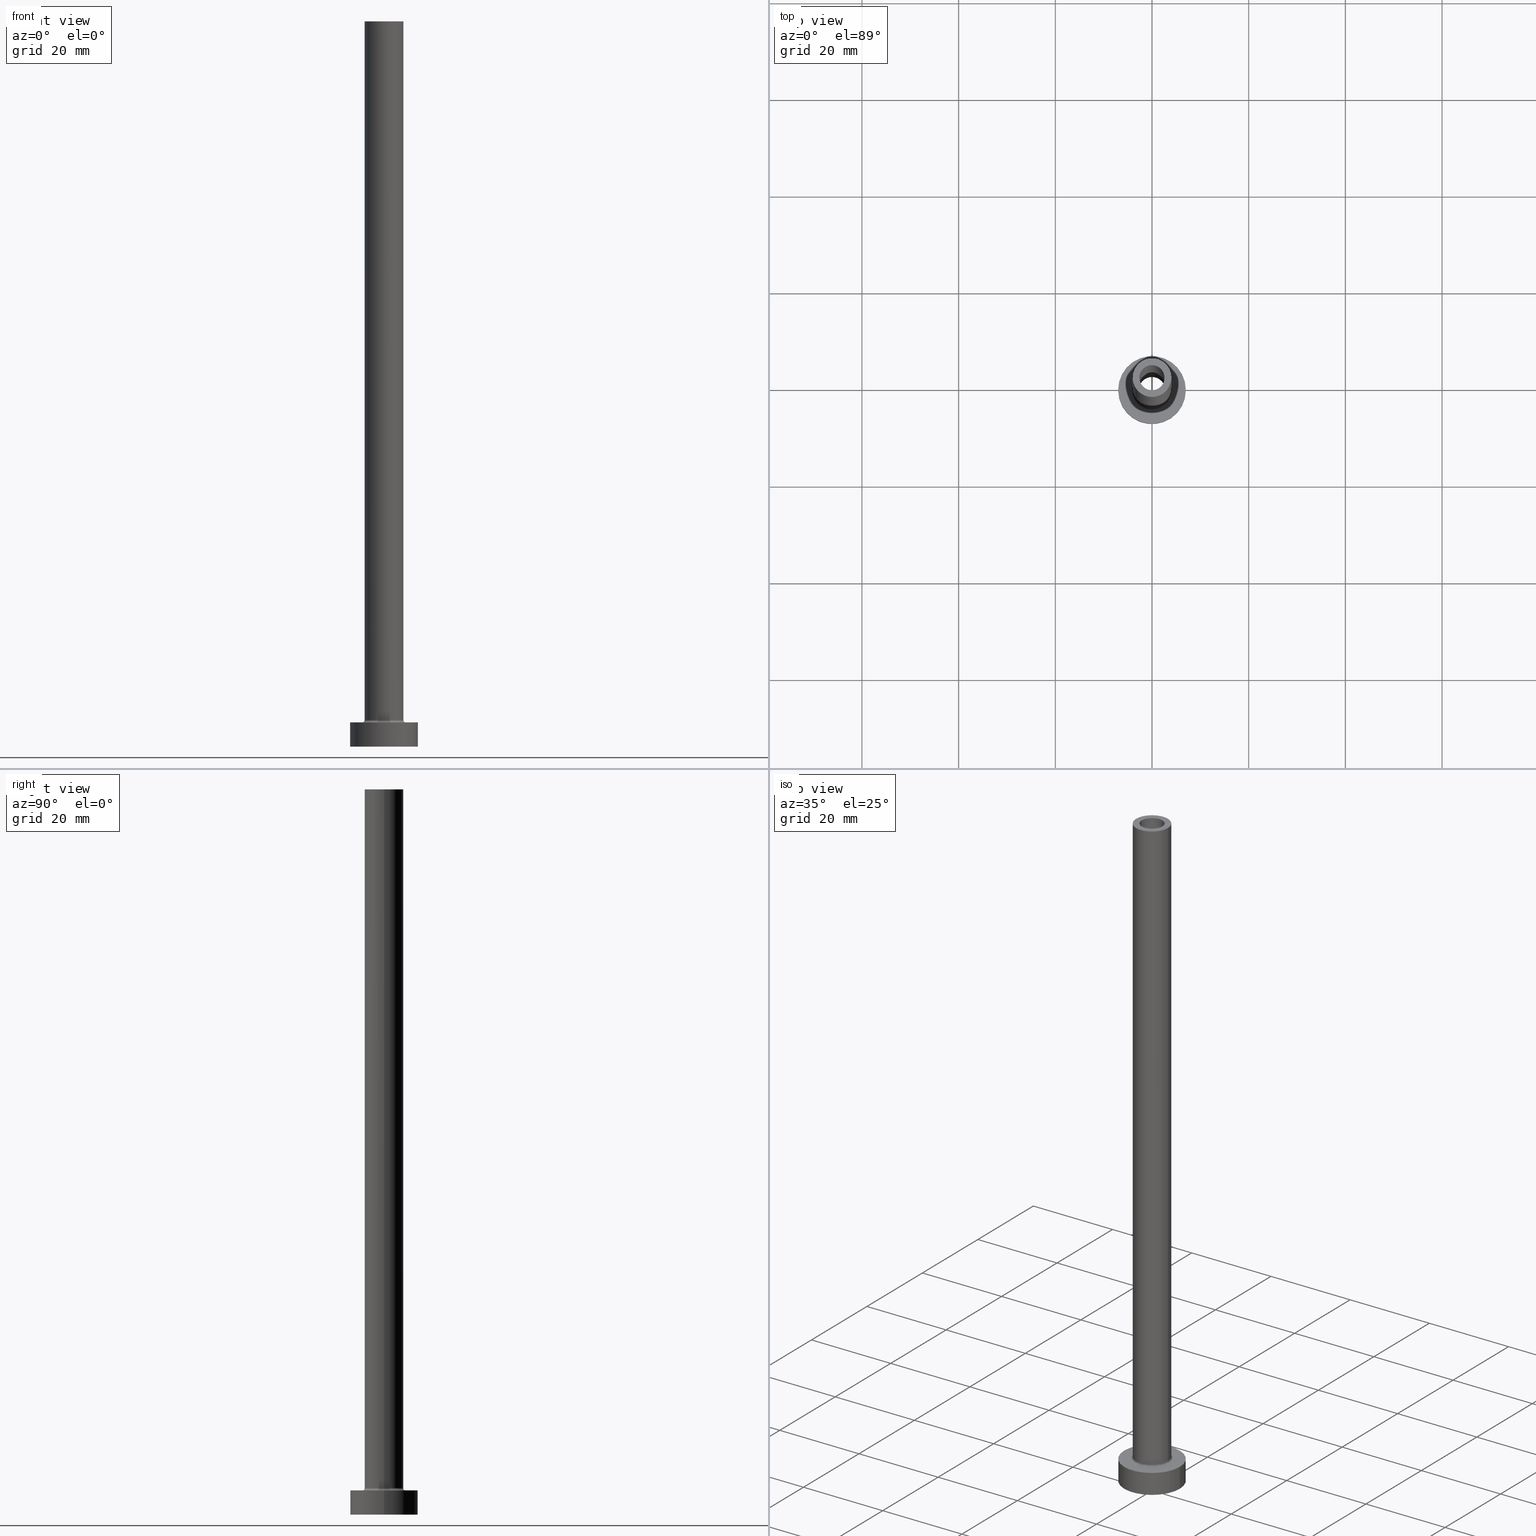
[diagram: canonical four-view strip — front | top / right | iso, engineering-drawing reading convention]
A machine part, canonical four-view strip (front | top / right | iso — engineering-drawing reading convention). The complete STEP part file that produces these views, byte-faithful:
ISO-10303-21;
HEADER;
FILE_DESCRIPTION (( 'STEP AP203' ),
    '1' );
FILE_NAME ('5574.STEP',
    '2023-02-13T16:31:23',
    ( '' ),
    ( '' ),
    'SwSTEP 2.0',
    'SolidWorks 2019',
    '' );
FILE_SCHEMA (( 'CONFIG_CONTROL_DESIGN' ));
ENDSEC;

DATA;
#1 = ADVANCED_FACE ( 'NONE', ( #315 ), #459, .T. ) ;
#2 = PRODUCT ( '5574', '5574', '', ( #221 ) ) ;
#3 = ORIENTED_EDGE ( 'NONE', *, *, #404, .F. ) ;
#4 = DIRECTION ( 'NONE',  ( -0.000000000000000000, -0.000000000000000000, -1.000000000000000000 ) ) ;
#5 = ORIENTED_EDGE ( 'NONE', *, *, #195, .F. ) ;
#6 = APPROVAL_ROLE ( '' ) ;
#7 = DIRECTION ( 'NONE',  ( -0.000000000000000000, -0.000000000000000000, -1.000000000000000000 ) ) ;
#8 = APPROVAL_PERSON_ORGANIZATION ( #353, #345, #6 ) ;
#9 = CC_DESIGN_DATE_AND_TIME_ASSIGNMENT ( #439, #388, ( #191 ) ) ;
#10 = DATE_AND_TIME ( #69, #254 ) ;
#11 = CARTESIAN_POINT ( 'NONE',  ( 0.000000000000000000, 0.000000000000000000, 150.0000000000000000 ) ) ;
#12 = APPROVAL_ROLE ( '' ) ;
#13 = AXIS2_PLACEMENT_3D ( 'NONE', #426, #327, #145 ) ;
#14 = DIRECTION ( 'NONE',  ( -0.000000000000000000, -0.000000000000000000, -1.000000000000000000 ) ) ;
#15 = EDGE_CURVE ( 'NONE', #357, #407, #36, .T. ) ;
#16 = FACE_BOUND ( 'NONE', #274, .T. ) ;
#17 = CARTESIAN_POINT ( 'NONE',  ( 0.000000000000000000, 0.000000000000000000, 5.000000000000000000 ) ) ;
#18 = FACE_BOUND ( 'NONE', #150, .T. ) ;
#19 = CIRCLE ( 'NONE', #209, 4.000000000000000000 ) ;
#20 = ORIENTED_EDGE ( 'NONE', *, *, #267, .T. ) ;
#21 = CARTESIAN_POINT ( 'NONE',  ( -2.600000000000000089, 0.000000000000000000, 150.0000000000000000 ) ) ;
#22 = FACE_OUTER_BOUND ( 'NONE', #74, .T. ) ;
#23 = DIRECTION ( 'NONE',  ( 0.000000000000000000, 0.000000000000000000, -1.000000000000000000 ) ) ;
#24 = ORIENTED_EDGE ( 'NONE', *, *, #300, .T. ) ;
#25 = DIRECTION ( 'NONE',  ( 1.000000000000000000, 0.000000000000000000, 0.000000000000000000 ) ) ;
#26 = CARTESIAN_POINT ( 'NONE',  ( 0.000000000000000000, 0.000000000000000000, 5.000000000000000000 ) ) ;
#27 = DIRECTION ( 'NONE',  ( 0.000000000000000000, 0.000000000000000000, 1.000000000000000000 ) ) ;
#28 = DIRECTION ( 'NONE',  ( -1.000000000000000000, 0.000000000000000000, 0.000000000000000000 ) ) ;
#29 = CYLINDRICAL_SURFACE ( 'NONE', #269, 2.750000000000000000 ) ;
#30 = ORIENTED_EDGE ( 'NONE', *, *, #224, .T. ) ;
#31 = DIRECTION ( 'NONE',  ( 0.000000000000000000, 0.000000000000000000, 1.000000000000000000 ) ) ;
#32 = AXIS2_PLACEMENT_3D ( 'NONE', #451, #87, #441 ) ;
#33 = CALENDAR_DATE ( 2023, 13, 2 ) ;
#34 = DATE_TIME_ROLE ( 'creation_date' ) ;
#35 = DIRECTION ( 'NONE',  ( 1.000000000000000000, 0.000000000000000000, 0.000000000000000000 ) ) ;
#36 = CIRCLE ( 'NONE', #85, 2.600000000000000089 ) ;
#37 = APPROVAL_STATUS ( 'not_yet_approved' ) ;
#38 = FACE_OUTER_BOUND ( 'NONE', #62, .T. ) ;
#39 = PERSON_AND_ORGANIZATION_ROLE ( 'creator' ) ;
#40 = ORIENTED_EDGE ( 'NONE', *, *, #61, .T. ) ;
#41 = DIRECTION ( 'NONE',  ( 0.000000000000000000, 0.000000000000000000, 1.000000000000000000 ) ) ;
#42 = AXIS2_PLACEMENT_3D ( 'NONE', #406, #77, #302 ) ;
#43 = ADVANCED_FACE ( 'NONE', ( #125 ), #29, .F. ) ;
#44 = CARTESIAN_POINT ( 'NONE',  ( 7.000000000000000000, 8.572527594031473190E-16, 0.000000000000000000 ) ) ;
#45 = VERTEX_POINT ( 'NONE', #252 ) ;
#46 = CARTESIAN_POINT ( 'NONE',  ( 0.000000000000000000, 0.000000000000000000, 5.000000000000000000 ) ) ;
#47 = LINE ( 'NONE', #263, #51 ) ;
#48 = CARTESIAN_POINT ( 'NONE',  ( 2.600000000000000089, 3.184081677783117698E-16, 150.0000000000000000 ) ) ;
#49 = PERSON ( 'NEUR�EN�', 'NEUR�EN�', 'NEUR�EN�', ('NEUR�EN�'), ('NEUR�EN�'), ('NEUR�EN�') ) ;
#50 = CIRCLE ( 'NONE', #13, 7.000000000000000000 ) ;
#51 = VECTOR ( 'NONE', #457, 1000.000000000000000 ) ;
#52 = CARTESIAN_POINT ( 'NONE',  ( -7.000000000000000000, 0.000000000000000000, 5.000000000000000000 ) ) ;
#53 = EDGE_CURVE ( 'NONE', #357, #456, #80, .T. ) ;
#54 = UNCERTAINTY_MEASURE_WITH_UNIT (LENGTH_MEASURE( 1.000000000000000082E-05 ), #133, 'distance_accuracy_value', 'NONE');
#55 = CARTESIAN_POINT ( 'NONE',  ( 0.000000000000000000, 0.000000000000000000, 5.500000000000005329 ) ) ;
#56 = AXIS2_PLACEMENT_3D ( 'NONE', #141, #178, #249 ) ;
#57 = CC_DESIGN_APPROVAL ( #345, ( #191 ) ) ;
#58 = DIRECTION ( 'NONE',  ( 0.000000000000000000, 0.000000000000000000, 1.000000000000000000 ) ) ;
#59 = DIRECTION ( 'NONE',  ( -1.000000000000000000, 0.000000000000000000, 0.000000000000000000 ) ) ;
#60 = CARTESIAN_POINT ( 'NONE',  ( 0.000000000000000000, 0.000000000000000000, 5.500000000000005329 ) ) ;
#61 = EDGE_CURVE ( 'NONE', #413, #75, #293, .T. ) ;
#62 = EDGE_LOOP ( 'NONE', ( #283, #445, #231, #20 ) ) ;
#63 = COORDINATED_UNIVERSAL_TIME_OFFSET ( 1, 0, .AHEAD. ) ;
#64 = CIRCLE ( 'NONE', #32, 2.750000000000000000 ) ;
#65 = ORGANIZATION ( 'NEUR�EN�', 'NEUR�EN�', '' ) ;
#66 = PERSON_AND_ORGANIZATION ( #49, #65 ) ;
#67 = ORIENTED_EDGE ( 'NONE', *, *, #264, .T. ) ;
#68 = CARTESIAN_POINT ( 'NONE',  ( -7.000000000000000000, 0.000000000000000000, 0.000000000000000000 ) ) ;
#69 = CALENDAR_DATE ( 2023, 13, 2 ) ;
#70 = DIRECTION ( 'NONE',  ( 1.000000000000000000, 0.000000000000000000, 0.000000000000000000 ) ) ;
#71 = AXIS2_PLACEMENT_3D ( 'NONE', #128, #415, #91 ) ;
#72 = CARTESIAN_POINT ( 'NONE',  ( 0.000000000000000000, 0.000000000000000000, 105.0000000000000000 ) ) ;
#73 = APPROVAL_DATE_TIME ( #10, #345 ) ;
#74 = EDGE_LOOP ( 'NONE', ( #193, #414 ) ) ;
#75 = VERTEX_POINT ( 'NONE', #117 ) ;
#76 = VECTOR ( 'NONE', #212, 1000.000000000000000 ) ;
#77 = DIRECTION ( 'NONE',  ( 0.000000000000000000, 0.000000000000000000, -1.000000000000000000 ) ) ;
#78 = AXIS2_PLACEMENT_3D ( 'NONE', #443, #408, #115 ) ;
#79 = EDGE_CURVE ( 'NONE', #284, #130, #255, .T. ) ;
#80 = LINE ( 'NONE', #21, #76 ) ;
#81 = DIRECTION ( 'NONE',  ( 1.000000000000000000, 0.000000000000000000, -0.000000000000000000 ) ) ;
#82 = DIRECTION ( 'NONE',  ( -0.000000000000000000, -0.000000000000000000, -1.000000000000000000 ) ) ;
#83 = LINE ( 'NONE', #118, #262 ) ;
#84 = EDGE_LOOP ( 'NONE', ( #3, #229, #390, #348 ) ) ;
#85 = AXIS2_PLACEMENT_3D ( 'NONE', #192, #268, #384 ) ;
#86 = LINE ( 'NONE', #411, #160 ) ;
#87 = DIRECTION ( 'NONE',  ( -0.000000000000000000, -0.000000000000000000, -1.000000000000000000 ) ) ;
#88 =( NAMED_UNIT ( * ) PLANE_ANGLE_UNIT ( ) SI_UNIT ( $, .RADIAN. ) );
#89 = ADVANCED_FACE ( 'NONE', ( #298, #307 ), #453, .F. ) ;
#90 = AXIS2_PLACEMENT_3D ( 'NONE', #223, #382, #352 ) ;
#91 = DIRECTION ( 'NONE',  ( 1.000000000000000000, 0.000000000000000000, -0.000000000000000000 ) ) ;
#92 = LOCAL_TIME ( 17, 31, 23.00000000000000000, #397 ) ;
#93 = CARTESIAN_POINT ( 'NONE',  ( 0.000000000000000000, 0.000000000000000000, 150.0000000000000000 ) ) ;
#94 = ORIENTED_EDGE ( 'NONE', *, *, #210, .F. ) ;
#95 = DIRECTION ( 'NONE',  ( 1.000000000000000000, 0.000000000000000000, 0.000000000000000000 ) ) ;
#96 = EDGE_CURVE ( 'NONE', #347, #202, #207, .T. ) ;
#97 = ORIENTED_EDGE ( 'NONE', *, *, #158, .F. ) ;
#98 = EDGE_LOOP ( 'NONE', ( #440, #226, #24, #401 ) ) ;
#99 = EDGE_LOOP ( 'NONE', ( #421, #94, #258, #157 ) ) ;
#100 = CALENDAR_DATE ( 2023, 13, 2 ) ;
#101 = ORIENTED_EDGE ( 'NONE', *, *, #185, .T. ) ;
#102 = AXIS2_PLACEMENT_3D ( 'NONE', #119, #403, #339 ) ;
#103 = LINE ( 'NONE', #239, #313 ) ;
#104 = ADVANCED_FACE ( 'NONE', ( #362 ), #243, .T. ) ;
#105 = ORIENTED_EDGE ( 'NONE', *, *, #181, .T. ) ;
#106 = CYLINDRICAL_SURFACE ( 'NONE', #56, 7.000000000000000000 ) ;
#107 = SHAPE_DEFINITION_REPRESENTATION ( #435, #346 ) ;
#108 = CARTESIAN_POINT ( 'NONE',  ( 4.000000000000000000, 4.898587196589412829E-16, 5.500000000000005329 ) ) ;
#109 = CIRCLE ( 'NONE', #370, 2.600000000000000089 ) ;
#110 = PERSON_AND_ORGANIZATION ( #49, #65 ) ;
#111 = CIRCLE ( 'NONE', #288, 4.000000000000000000 ) ;
#112 = CIRCLE ( 'NONE', #248, 2.600000000000000089 ) ;
#113 = FACE_BOUND ( 'NONE', #419, .T. ) ;
#114 = CARTESIAN_POINT ( 'NONE',  ( 0.000000000000000000, 0.000000000000000000, 150.0000000000000000 ) ) ;
#115 = DIRECTION ( 'NONE',  ( 1.000000000000000000, 0.000000000000000000, 0.000000000000000000 ) ) ;
#116 = PRODUCT_DEFINITION_FORMATION_WITH_SPECIFIED_SOURCE ( 'LIBOVOLN�', '', #2, .NOT_KNOWN. ) ;
#117 = CARTESIAN_POINT ( 'NONE',  ( -4.500000000000000888, 5.510910596163088569E-16, 5.000000000000002665 ) ) ;
#118 = CARTESIAN_POINT ( 'NONE',  ( 4.000000000000000000, 4.898587196589412829E-16, 150.0000000000000000 ) ) ;
#119 = CARTESIAN_POINT ( 'NONE',  ( 0.000000000000000000, 0.000000000000000000, 150.0000000000000000 ) ) ;
#120 = DIRECTION ( 'NONE',  ( 0.000000000000000000, 0.000000000000000000, 1.000000000000000000 ) ) ;
#121 = ADVANCED_FACE ( 'NONE', ( #113, #176 ), #143, .T. ) ;
#122 = EDGE_CURVE ( 'NONE', #152, #456, #109, .T. ) ;
#123 = APPROVAL_PERSON_ORGANIZATION ( #110, #305, #200 ) ;
#124 = FACE_OUTER_BOUND ( 'NONE', #304, .T. ) ;
#125 = FACE_OUTER_BOUND ( 'NONE', #429, .T. ) ;
#126 = VERTEX_POINT ( 'NONE', #285 ) ;
#127 =( NAMED_UNIT ( * ) SI_UNIT ( $, .STERADIAN. ) SOLID_ANGLE_UNIT ( ) );
#128 = CARTESIAN_POINT ( 'NONE',  ( 0.000000000000000000, 0.000000000000000000, 105.0000000000000000 ) ) ;
#129 = DIRECTION ( 'NONE',  ( 0.000000000000000000, 0.000000000000000000, 1.000000000000000000 ) ) ;
#130 = VERTEX_POINT ( 'NONE', #172 ) ;
#131 = AXIS2_PLACEMENT_3D ( 'NONE', #378, #310, #423 ) ;
#132 = ORIENTED_EDGE ( 'NONE', *, *, #432, .T. ) ;
#133 =( LENGTH_UNIT ( ) NAMED_UNIT ( * ) SI_UNIT ( .MILLI., .METRE. ) );
#134 = ORIENTED_EDGE ( 'NONE', *, *, #15, .F. ) ;
#135 = VERTEX_POINT ( 'NONE', #108 ) ;
#136 = ADVANCED_FACE ( 'NONE', ( #38 ), #106, .T. ) ;
#137 = EDGE_LOOP ( 'NONE', ( #203, #237 ) ) ;
#138 = COORDINATED_UNIVERSAL_TIME_OFFSET ( 1, 0, .AHEAD. ) ;
#139 = CC_DESIGN_APPROVAL ( #379, ( #116 ) ) ;
#140 = ORIENTED_EDGE ( 'NONE', *, *, #325, .T. ) ;
#141 = CARTESIAN_POINT ( 'NONE',  ( 0.000000000000000000, 0.000000000000000000, 5.000000000000000000 ) ) ;
#142 = COORDINATED_UNIVERSAL_TIME_OFFSET ( 1, 0, .AHEAD. ) ;
#143 = PLANE ( 'NONE',  #336 ) ;
#144 = COORDINATED_UNIVERSAL_TIME_OFFSET ( 1, 0, .AHEAD. ) ;
#145 = DIRECTION ( 'NONE',  ( 1.000000000000000000, 0.000000000000000000, 0.000000000000000000 ) ) ;
#146 =( GEOMETRIC_REPRESENTATION_CONTEXT ( 3 ) GLOBAL_UNCERTAINTY_ASSIGNED_CONTEXT ( ( #54 ) ) GLOBAL_UNIT_ASSIGNED_CONTEXT ( ( #133, #88, #127 ) ) REPRESENTATION_CONTEXT ( 'NONE', 'WORKASPACE' ) );
#147 = CARTESIAN_POINT ( 'NONE',  ( 0.000000000000000000, 0.000000000000000000, 0.000000000000000000 ) ) ;
#148 = CARTESIAN_POINT ( 'NONE',  ( -2.750000000000000000, 0.000000000000000000, 105.0000000000000000 ) ) ;
#149 = ORIENTED_EDGE ( 'NONE', *, *, #381, .F. ) ;
#150 = EDGE_LOOP ( 'NONE', ( #134, #198 ) ) ;
#151 = PLANE ( 'NONE',  #330 ) ;
#152 = VERTEX_POINT ( 'NONE', #431 ) ;
#153 = CARTESIAN_POINT ( 'NONE',  ( -4.000000000000000000, 0.000000000000000000, 150.0000000000000000 ) ) ;
#154 = DIRECTION ( 'NONE',  ( 0.000000000000000000, 0.000000000000000000, 1.000000000000000000 ) ) ;
#155 = CC_DESIGN_PERSON_AND_ORGANIZATION_ASSIGNMENT ( #174, #177, ( #116 ) ) ;
#156 = FACE_OUTER_BOUND ( 'NONE', #366, .T. ) ;
#157 = ORIENTED_EDGE ( 'NONE', *, *, #442, .T. ) ;
#158 = EDGE_CURVE ( 'NONE', #75, #413, #417, .T. ) ;
#159 = AXIS2_PLACEMENT_3D ( 'NONE', #46, #165, #227 ) ;
#160 = VECTOR ( 'NONE', #14, 1000.000000000000000 ) ;
#161 = DIRECTION ( 'NONE',  ( 1.000000000000000000, 0.000000000000000000, 0.000000000000000000 ) ) ;
#162 = PRODUCT_DEFINITION ( 'NEZN�M�', '', #116, #225 ) ;
#163 = DIRECTION ( 'NONE',  ( -1.000000000000000000, 0.000000000000000000, 0.000000000000000000 ) ) ;
#164 = DIRECTION ( 'NONE',  ( 0.000000000000000000, 0.000000000000000000, 1.000000000000000000 ) ) ;
#165 = DIRECTION ( 'NONE',  ( -0.000000000000000000, -0.000000000000000000, -1.000000000000000000 ) ) ;
#166 = FACE_OUTER_BOUND ( 'NONE', #214, .T. ) ;
#167 = CIRCLE ( 'NONE', #380, 2.750000000000000000 ) ;
#168 = ORIENTED_EDGE ( 'NONE', *, *, #334, .T. ) ;
#169 = EDGE_LOOP ( 'NONE', ( #437, #235, #105, #97 ) ) ;
#170 = APPROVAL_STATUS ( 'not_yet_approved' ) ;
#171 = ORIENTED_EDGE ( 'NONE', *, *, #15, .T. ) ;
#172 = CARTESIAN_POINT ( 'NONE',  ( -4.000000000000000000, 0.000000000000000000, 5.500000000000005329 ) ) ;
#173 = ORIENTED_EDGE ( 'NONE', *, *, #341, .F. ) ;
#174 = PERSON_AND_ORGANIZATION ( #49, #65 ) ;
#175 = CALENDAR_DATE ( 2023, 13, 2 ) ;
#176 = FACE_OUTER_BOUND ( 'NONE', #265, .T. ) ;
#177 = PERSON_AND_ORGANIZATION_ROLE ( 'design_supplier' ) ;
#178 = DIRECTION ( 'NONE',  ( -0.000000000000000000, -0.000000000000000000, -1.000000000000000000 ) ) ;
#179 = DIRECTION ( 'NONE',  ( 1.000000000000000000, 0.000000000000000000, 0.000000000000000000 ) ) ;
#180 = DIRECTION ( 'NONE',  ( 0.000000000000000000, 0.000000000000000000, 1.000000000000000000 ) ) ;
#181 = EDGE_CURVE ( 'NONE', #135, #413, #271, .T. ) ;
#182 = CARTESIAN_POINT ( 'NONE',  ( 0.000000000000000000, 0.000000000000000000, 112.7781745930520145 ) ) ;
#183 = ORIENTED_EDGE ( 'NONE', *, *, #442, .F. ) ;
#184 = FACE_OUTER_BOUND ( 'NONE', #137, .T. ) ;
#185 = EDGE_CURVE ( 'NONE', #45, #245, #50, .T. ) ;
#186 = DIRECTION ( 'NONE',  ( 0.000000000000000000, 0.000000000000000000, 1.000000000000000000 ) ) ;
#187 = AXIS2_PLACEMENT_3D ( 'NONE', #26, #164, #95 ) ;
#188 = DIRECTION ( 'NONE',  ( 1.000000000000000000, 0.000000000000000000, 0.000000000000000000 ) ) ;
#189 = CARTESIAN_POINT ( 'NONE',  ( 2.750000000000000000, 3.367778697655221012E-16, 105.0000000000000000 ) ) ;
#190 = CARTESIAN_POINT ( 'NONE',  ( 0.000000000000000000, 0.000000000000000000, 0.000000000000000000 ) ) ;
#191 = SECURITY_CLASSIFICATION ( '', '', #244 ) ;
#192 = CARTESIAN_POINT ( 'NONE',  ( 0.000000000000000000, 0.000000000000000000, 150.0000000000000000 ) ) ;
#193 = ORIENTED_EDGE ( 'NONE', *, *, #267, .F. ) ;
#194 = CARTESIAN_POINT ( 'NONE',  ( 0.000000000000000000, 0.000000000000000000, 5.500000000000005329 ) ) ;
#195 = EDGE_CURVE ( 'NONE', #312, #126, #103, .T. ) ;
#196 = APPLICATION_CONTEXT ( 'configuration controlled 3d designs of mechanical parts and assemblies' ) ;
#197 = FACE_OUTER_BOUND ( 'NONE', #169, .T. ) ;
#198 = ORIENTED_EDGE ( 'NONE', *, *, #325, .F. ) ;
#199 = AXIS2_PLACEMENT_3D ( 'NONE', #190, #342, #161 ) ;
#200 = APPROVAL_ROLE ( '' ) ;
#201 = CARTESIAN_POINT ( 'NONE',  ( 0.000000000000000000, 0.000000000000000000, 150.0000000000000000 ) ) ;
#202 = VERTEX_POINT ( 'NONE', #68 ) ;
#203 = ORIENTED_EDGE ( 'NONE', *, *, #210, .T. ) ;
#204 = CIRCLE ( 'NONE', #78, 7.000000000000000000 ) ;
#205 = PERSON_AND_ORGANIZATION ( #49, #65 ) ;
#206 = DIRECTION ( 'NONE',  ( 0.000000000000000000, 0.000000000000000000, 1.000000000000000000 ) ) ;
#207 = CIRCLE ( 'NONE', #90, 7.000000000000000000 ) ;
#208 = DIRECTION ( 'NONE',  ( 1.224646799147353207E-16, 1.000000000000000000, -0.000000000000000000 ) ) ;
#209 = AXIS2_PLACEMENT_3D ( 'NONE', #194, #27, #232 ) ;
#210 = EDGE_CURVE ( 'NONE', #284, #340, #111, .T. ) ;
#211 = ADVANCED_FACE ( 'NONE', ( #18, #184 ), #151, .T. ) ;
#212 = DIRECTION ( 'NONE',  ( 0.000000000000000000, 0.000000000000000000, -1.000000000000000000 ) ) ;
#213 = DIRECTION ( 'NONE',  ( -0.000000000000000000, -0.000000000000000000, -1.000000000000000000 ) ) ;
#214 = EDGE_LOOP ( 'NONE', ( #183, #168, #359, #320 ) ) ;
#215 = CARTESIAN_POINT ( 'NONE',  ( -4.500000000000000888, 5.510910596163089556E-16, 5.500000000000005329 ) ) ;
#216 = CC_DESIGN_DATE_AND_TIME_ASSIGNMENT ( #425, #34, ( #162 ) ) ;
#217 = ORIENTED_EDGE ( 'NONE', *, *, #404, .T. ) ;
#218 = DIRECTION ( 'NONE',  ( -1.000000000000000000, 1.224646799147351482E-16, 0.000000000000000000 ) ) ;
#219 = AXIS2_PLACEMENT_3D ( 'NONE', #449, #186, #188 ) ;
#220 = CARTESIAN_POINT ( 'NONE',  ( 0.000000000000000000, 0.000000000000000000, 150.0000000000000000 ) ) ;
#221 = MECHANICAL_CONTEXT ( 'NONE', #297, 'mechanical' ) ;
#222 = APPLICATION_PROTOCOL_DEFINITION ( 'international standard', 'config_control_design', 1994, #297 ) ;
#223 = CARTESIAN_POINT ( 'NONE',  ( 0.000000000000000000, 0.000000000000000000, 0.000000000000000000 ) ) ;
#224 = EDGE_CURVE ( 'NONE', #309, #126, #64, .T. ) ;
#225 = DESIGN_CONTEXT ( 'detailed design', #196, 'design' ) ;
#226 = ORIENTED_EDGE ( 'NONE', *, *, #277, .T. ) ;
#227 = DIRECTION ( 'NONE',  ( -1.000000000000000000, 0.000000000000000000, 0.000000000000000000 ) ) ;
#228 = EDGE_LOOP ( 'NONE', ( #386, #246 ) ) ;
#229 = ORIENTED_EDGE ( 'NONE', *, *, #368, .T. ) ;
#230 = EDGE_CURVE ( 'NONE', #340, #284, #372, .T. ) ;
#231 = ORIENTED_EDGE ( 'NONE', *, *, #234, .T. ) ;
#232 = DIRECTION ( 'NONE',  ( 1.000000000000000000, 0.000000000000000000, 0.000000000000000000 ) ) ;
#233 = AXIS2_PLACEMENT_3D ( 'NONE', #17, #294, #446 ) ;
#234 = EDGE_CURVE ( 'NONE', #45, #202, #376, .T. ) ;
#235 = ORIENTED_EDGE ( 'NONE', *, *, #300, .F. ) ;
#236 = CIRCLE ( 'NONE', #219, 2.750000000000000000 ) ;
#237 = ORIENTED_EDGE ( 'NONE', *, *, #230, .T. ) ;
#238 = APPLICATION_PROTOCOL_DEFINITION ( 'international standard', 'config_control_design', 1994, #196 ) ;
#239 = CARTESIAN_POINT ( 'NONE',  ( -2.750000000000000000, 0.000000000000000000, 112.7781745930520145 ) ) ;
#240 = CC_DESIGN_PERSON_AND_ORGANIZATION_ASSIGNMENT ( #433, #247, ( #191 ) ) ;
#241 = ORIENTED_EDGE ( 'NONE', *, *, #264, .F. ) ;
#242 = APPROVAL_DATE_TIME ( #394, #305 ) ;
#243 = CYLINDRICAL_SURFACE ( 'NONE', #280, 4.000000000000000000 ) ;
#244 = SECURITY_CLASSIFICATION_LEVEL ( 'unclassified' ) ;
#245 = VERTEX_POINT ( 'NONE', #250 ) ;
#246 = ORIENTED_EDGE ( 'NONE', *, *, #122, .T. ) ;
#247 = PERSON_AND_ORGANIZATION_ROLE ( 'classification_officer' ) ;
#248 = AXIS2_PLACEMENT_3D ( 'NONE', #374, #364, #179 ) ;
#249 = DIRECTION ( 'NONE',  ( -1.000000000000000000, 0.000000000000000000, 0.000000000000000000 ) ) ;
#250 = CARTESIAN_POINT ( 'NONE',  ( 7.000000000000000000, 8.572527594031473190E-16, 5.000000000000000000 ) ) ;
#251 = AXIS2_PLACEMENT_3D ( 'NONE', #434, #4, #70 ) ;
#252 = CARTESIAN_POINT ( 'NONE',  ( -7.000000000000000000, 0.000000000000000000, 5.000000000000000000 ) ) ;
#253 = DIRECTION ( 'NONE',  ( -0.000000000000000000, -0.000000000000000000, -1.000000000000000000 ) ) ;
#254 = LOCAL_TIME ( 17, 31, 23.00000000000000000, #138 ) ;
#255 = LINE ( 'NONE', #153, #424 ) ;
#256 = DIRECTION ( 'NONE',  ( 1.000000000000000000, 0.000000000000000000, 0.000000000000000000 ) ) ;
#257 = EDGE_LOOP ( 'NONE', ( #241, #371 ) ) ;
#258 = ORIENTED_EDGE ( 'NONE', *, *, #79, .T. ) ;
#259 = CYLINDRICAL_SURFACE ( 'NONE', #42, 2.600000000000000089 ) ;
#260 = CARTESIAN_POINT ( 'NONE',  ( 2.750000000000000000, 3.367778697655221012E-16, 0.000000000000000000 ) ) ;
#261 = VECTOR ( 'NONE', #333, 1000.000000000000000 ) ;
#262 = VECTOR ( 'NONE', #253, 1000.000000000000000 ) ;
#263 = CARTESIAN_POINT ( 'NONE',  ( 2.750000000000000000, 3.367778697655221012E-16, 112.7781745930520145 ) ) ;
#264 = EDGE_CURVE ( 'NONE', #312, #448, #236, .T. ) ;
#265 = EDGE_LOOP ( 'NONE', ( #101, #217 ) ) ;
#266 = EDGE_CURVE ( 'NONE', #407, #152, #447, .T. ) ;
#267 = EDGE_CURVE ( 'NONE', #202, #347, #204, .T. ) ;
#268 = DIRECTION ( 'NONE',  ( 0.000000000000000000, 0.000000000000000000, 1.000000000000000000 ) ) ;
#269 = AXIS2_PLACEMENT_3D ( 'NONE', #182, #412, #163 ) ;
#270 = CARTESIAN_POINT ( 'NONE',  ( 0.000000000000000000, 0.000000000000000000, 105.0000000000000000 ) ) ;
#271 = CIRCLE ( 'NONE', #322, 0.5000000000000004441 ) ;
#272 = LOCAL_TIME ( 17, 31, 23.00000000000000000, #144 ) ;
#273 = FACE_OUTER_BOUND ( 'NONE', #98, .T. ) ;
#274 = EDGE_LOOP ( 'NONE', ( #430, #317 ) ) ;
#275 = DIRECTION ( 'NONE',  ( 1.000000000000000000, 0.000000000000000000, 0.000000000000000000 ) ) ;
#276 = ORIENTED_EDGE ( 'NONE', *, *, #266, .T. ) ;
#277 = EDGE_CURVE ( 'NONE', #340, #135, #83, .T. ) ;
#278 = ORIENTED_EDGE ( 'NONE', *, *, #266, .F. ) ;
#279 = CALENDAR_DATE ( 2023, 13, 2 ) ;
#280 = AXIS2_PLACEMENT_3D ( 'NONE', #11, #7, #393 ) ;
#281 = CARTESIAN_POINT ( 'NONE',  ( 0.000000000000000000, 0.000000000000000000, 5.000000000000000000 ) ) ;
#282 = CC_DESIGN_APPROVAL ( #305, ( #162 ) ) ;
#283 = ORIENTED_EDGE ( 'NONE', *, *, #368, .F. ) ;
#284 = VERTEX_POINT ( 'NONE', #338 ) ;
#285 = CARTESIAN_POINT ( 'NONE',  ( -2.750000000000000000, 0.000000000000000000, 0.000000000000000000 ) ) ;
#286 = PERSON_AND_ORGANIZATION_ROLE ( 'creator' ) ;
#287 = ORIENTED_EDGE ( 'NONE', *, *, #158, .T. ) ;
#288 = AXIS2_PLACEMENT_3D ( 'NONE', #201, #356, #35 ) ;
#289 = CC_DESIGN_PERSON_AND_ORGANIZATION_ASSIGNMENT ( #205, #326, ( #2 ) ) ;
#290 = DIRECTION ( 'NONE',  ( 1.000000000000000000, 0.000000000000000000, 0.000000000000000000 ) ) ;
#291 = ADVANCED_FACE ( 'NONE', ( #156 ), #259, .F. ) ;
#292 = CARTESIAN_POINT ( 'NONE',  ( 0.000000000000000000, 0.000000000000000000, 0.000000000000000000 ) ) ;
#293 = CIRCLE ( 'NONE', #233, 4.500000000000000888 ) ;
#294 = DIRECTION ( 'NONE',  ( -0.000000000000000000, -0.000000000000000000, -1.000000000000000000 ) ) ;
#295 = AXIS2_PLACEMENT_3D ( 'NONE', #400, #180, #256 ) ;
#296 = DIRECTION ( 'NONE',  ( 0.000000000000000000, 0.000000000000000000, 1.000000000000000000 ) ) ;
#297 = APPLICATION_CONTEXT ( 'configuration controlled 3d designs of mechanical parts and assemblies' ) ;
#298 = FACE_BOUND ( 'NONE', #228, .T. ) ;
#299 = CARTESIAN_POINT ( 'NONE',  ( -2.600000000000000089, 0.000000000000000000, 150.0000000000000000 ) ) ;
#300 = EDGE_CURVE ( 'NONE', #135, #130, #306, .T. ) ;
#301 = ORIENTED_EDGE ( 'NONE', *, *, #53, .F. ) ;
#302 = DIRECTION ( 'NONE',  ( -1.000000000000000000, 0.000000000000000000, 0.000000000000000000 ) ) ;
#303 = CLOSED_SHELL ( 'NONE', ( #461, #43, #398, #427, #1, #136, #121, #350, #104, #211, #399, #389, #89, #291 ) ) ;
#304 = EDGE_LOOP ( 'NONE', ( #149, #132, #355, #385 ) ) ;
#305 = APPROVAL ( #170, 'NEUR�EN�' ) ;
#306 = CIRCLE ( 'NONE', #295, 4.000000000000000000 ) ;
#307 = FACE_OUTER_BOUND ( 'NONE', #257, .T. ) ;
#308 = CYLINDRICAL_SURFACE ( 'NONE', #358, 4.000000000000000000 ) ;
#309 = VERTEX_POINT ( 'NONE', #260 ) ;
#310 = DIRECTION ( 'NONE',  ( 0.000000000000000000, 0.000000000000000000, -1.000000000000000000 ) ) ;
#311 = MANIFOLD_SOLID_BREP ( 'Odebrat vysunut�m4', #303 ) ;
#312 = VERTEX_POINT ( 'NONE', #148 ) ;
#313 = VECTOR ( 'NONE', #391, 1000.000000000000000 ) ;
#314 = AXIS2_PLACEMENT_3D ( 'NONE', #60, #129, #377 ) ;
#315 = FACE_OUTER_BOUND ( 'NONE', #84, .T. ) ;
#316 = CARTESIAN_POINT ( 'NONE',  ( 2.600000000000000089, 3.184081677783117698E-16, 150.0000000000000000 ) ) ;
#317 = ORIENTED_EDGE ( 'NONE', *, *, #224, .F. ) ;
#318 = DIRECTION ( 'NONE',  ( 1.000000000000000000, 0.000000000000000000, 0.000000000000000000 ) ) ;
#319 = APPROVAL_STATUS ( 'not_yet_approved' ) ;
#320 = ORIENTED_EDGE ( 'NONE', *, *, #181, .F. ) ;
#321 = DIRECTION ( 'NONE',  ( 1.000000000000000000, 0.000000000000000000, -0.000000000000000000 ) ) ;
#322 = AXIS2_PLACEMENT_3D ( 'NONE', #395, #360, #329 ) ;
#323 = CC_DESIGN_SECURITY_CLASSIFICATION ( #191, ( #116 ) ) ;
#324 = PERSON_AND_ORGANIZATION ( #49, #65 ) ;
#325 = EDGE_CURVE ( 'NONE', #407, #357, #452, .T. ) ;
#326 = PERSON_AND_ORGANIZATION_ROLE ( 'design_owner' ) ;
#327 = DIRECTION ( 'NONE',  ( 0.000000000000000000, 0.000000000000000000, 1.000000000000000000 ) ) ;
#328 = CC_DESIGN_PERSON_AND_ORGANIZATION_ASSIGNMENT ( #66, #39, ( #116 ) ) ;
#329 = DIRECTION ( 'NONE',  ( 0.000000000000000000, 0.000000000000000000, -1.000000000000000000 ) ) ;
#330 = AXIS2_PLACEMENT_3D ( 'NONE', #220, #296, #335 ) ;
#331 = AXIS2_PLACEMENT_3D ( 'NONE', #292, #154, #81 ) ;
#332 = PLANE ( 'NONE',  #331 ) ;
#333 = DIRECTION ( 'NONE',  ( -0.000000000000000000, -0.000000000000000000, -1.000000000000000000 ) ) ;
#334 = EDGE_CURVE ( 'NONE', #130, #75, #444, .T. ) ;
#335 = DIRECTION ( 'NONE',  ( 1.000000000000000000, 0.000000000000000000, -0.000000000000000000 ) ) ;
#336 = AXIS2_PLACEMENT_3D ( 'NONE', #281, #206, #321 ) ;
#337 = CIRCLE ( 'NONE', #373, 2.750000000000000000 ) ;
#338 = CARTESIAN_POINT ( 'NONE',  ( -4.000000000000000000, 0.000000000000000000, 150.0000000000000000 ) ) ;
#339 = DIRECTION ( 'NONE',  ( 1.000000000000000000, 0.000000000000000000, 0.000000000000000000 ) ) ;
#340 = VERTEX_POINT ( 'NONE', #369 ) ;
#341 = EDGE_CURVE ( 'NONE', #456, #152, #112, .T. ) ;
#342 = DIRECTION ( 'NONE',  ( 0.000000000000000000, 0.000000000000000000, 1.000000000000000000 ) ) ;
#343 = APPROVAL_PERSON_ORGANIZATION ( #392, #379, #12 ) ;
#344 = CARTESIAN_POINT ( 'NONE',  ( -2.600000000000000089, 0.000000000000000000, 105.0000000000000000 ) ) ;
#345 = APPROVAL ( #319, 'NEUR�EN�' ) ;
#346 = ADVANCED_BREP_SHAPE_REPRESENTATION ( '5574', ( #311, #199 ), #146 ) ;
#347 = VERTEX_POINT ( 'NONE', #44 ) ;
#348 = ORIENTED_EDGE ( 'NONE', *, *, #234, .F. ) ;
#349 = DIRECTION ( 'NONE',  ( 0.000000000000000000, 0.000000000000000000, -1.000000000000000000 ) ) ;
#350 = ADVANCED_FACE ( 'NONE', ( #16, #22 ), #332, .F. ) ;
#351 = TOROIDAL_SURFACE ( 'NONE', #410, 4.500000000000000888, 0.5000000000000000000 ) ;
#352 = DIRECTION ( 'NONE',  ( 1.000000000000000000, 0.000000000000000000, 0.000000000000000000 ) ) ;
#353 = PERSON_AND_ORGANIZATION ( #49, #65 ) ;
#354 = CC_DESIGN_PERSON_AND_ORGANIZATION_ASSIGNMENT ( #324, #286, ( #162 ) ) ;
#355 = ORIENTED_EDGE ( 'NONE', *, *, #195, .T. ) ;
#356 = DIRECTION ( 'NONE',  ( 0.000000000000000000, 0.000000000000000000, 1.000000000000000000 ) ) ;
#357 = VERTEX_POINT ( 'NONE', #299 ) ;
#358 = AXIS2_PLACEMENT_3D ( 'NONE', #460, #455, #59 ) ;
#359 = ORIENTED_EDGE ( 'NONE', *, *, #61, .F. ) ;
#360 = DIRECTION ( 'NONE',  ( 0.000000000000000000, -1.000000000000000000, 0.000000000000000000 ) ) ;
#361 = APPROVAL_DATE_TIME ( #436, #379 ) ;
#362 = FACE_OUTER_BOUND ( 'NONE', #99, .T. ) ;
#363 = AXIS2_PLACEMENT_3D ( 'NONE', #215, #208, #218 ) ;
#364 = DIRECTION ( 'NONE',  ( 0.000000000000000000, 0.000000000000000000, 1.000000000000000000 ) ) ;
#365 = DIRECTION ( 'NONE',  ( 1.000000000000000000, 0.000000000000000000, 0.000000000000000000 ) ) ;
#366 = EDGE_LOOP ( 'NONE', ( #278, #140, #450, #422 ) ) ;
#367 = ORIENTED_EDGE ( 'NONE', *, *, #381, .T. ) ;
#368 = EDGE_CURVE ( 'NONE', #245, #347, #86, .T. ) ;
#369 = CARTESIAN_POINT ( 'NONE',  ( 4.000000000000000000, 4.898587196589412829E-16, 150.0000000000000000 ) ) ;
#370 = AXIS2_PLACEMENT_3D ( 'NONE', #72, #41, #318 ) ;
#371 = ORIENTED_EDGE ( 'NONE', *, *, #432, .F. ) ;
#372 = CIRCLE ( 'NONE', #438, 4.000000000000000000 ) ;
#373 = AXIS2_PLACEMENT_3D ( 'NONE', #147, #213, #365 ) ;
#374 = CARTESIAN_POINT ( 'NONE',  ( 0.000000000000000000, 0.000000000000000000, 105.0000000000000000 ) ) ;
#375 = EDGE_CURVE ( 'NONE', #126, #309, #337, .T. ) ;
#376 = LINE ( 'NONE', #52, #261 ) ;
#377 = DIRECTION ( 'NONE',  ( 1.000000000000000000, 0.000000000000000000, 0.000000000000000000 ) ) ;
#378 = CARTESIAN_POINT ( 'NONE',  ( 0.000000000000000000, 0.000000000000000000, 112.7781745930520145 ) ) ;
#379 = APPROVAL ( #37, 'NEUR�EN�' ) ;
#380 = AXIS2_PLACEMENT_3D ( 'NONE', #270, #31, #25 ) ;
#381 = EDGE_CURVE ( 'NONE', #448, #309, #47, .T. ) ;
#382 = DIRECTION ( 'NONE',  ( 0.000000000000000000, 0.000000000000000000, 1.000000000000000000 ) ) ;
#383 = CARTESIAN_POINT ( 'NONE',  ( 4.500000000000000888, 0.000000000000000000, 5.000000000000002665 ) ) ;
#384 = DIRECTION ( 'NONE',  ( 1.000000000000000000, 0.000000000000000000, 0.000000000000000000 ) ) ;
#385 = ORIENTED_EDGE ( 'NONE', *, *, #375, .T. ) ;
#386 = ORIENTED_EDGE ( 'NONE', *, *, #341, .T. ) ;
#387 = LOCAL_TIME ( 17, 31, 23.00000000000000000, #142 ) ;
#388 = DATE_TIME_ROLE ( 'classification_date' ) ;
#389 = ADVANCED_FACE ( 'NONE', ( #124 ), #454, .F. ) ;
#390 = ORIENTED_EDGE ( 'NONE', *, *, #96, .T. ) ;
#391 = DIRECTION ( 'NONE',  ( 0.000000000000000000, 0.000000000000000000, -1.000000000000000000 ) ) ;
#392 = PERSON_AND_ORGANIZATION ( #49, #65 ) ;
#393 = DIRECTION ( 'NONE',  ( -1.000000000000000000, 0.000000000000000000, 0.000000000000000000 ) ) ;
#394 = DATE_AND_TIME ( #175, #272 ) ;
#395 = CARTESIAN_POINT ( 'NONE',  ( 4.500000000000000888, 0.000000000000000000, 5.500000000000005329 ) ) ;
#396 = CIRCLE ( 'NONE', #187, 7.000000000000000000 ) ;
#397 = COORDINATED_UNIVERSAL_TIME_OFFSET ( 1, 0, .AHEAD. ) ;
#398 = ADVANCED_FACE ( 'NONE', ( #166 ), #351, .F. ) ;
#399 = ADVANCED_FACE ( 'NONE', ( #197 ), #428, .F. ) ;
#400 = CARTESIAN_POINT ( 'NONE',  ( 0.000000000000000000, 0.000000000000000000, 5.500000000000005329 ) ) ;
#401 = ORIENTED_EDGE ( 'NONE', *, *, #79, .F. ) ;
#402 = AXIS2_PLACEMENT_3D ( 'NONE', #93, #349, #28 ) ;
#403 = DIRECTION ( 'NONE',  ( 0.000000000000000000, 0.000000000000000000, 1.000000000000000000 ) ) ;
#404 = EDGE_CURVE ( 'NONE', #245, #45, #396, .T. ) ;
#405 = EDGE_LOOP ( 'NONE', ( #171, #276, #173, #301 ) ) ;
#406 = CARTESIAN_POINT ( 'NONE',  ( 0.000000000000000000, 0.000000000000000000, 150.0000000000000000 ) ) ;
#407 = VERTEX_POINT ( 'NONE', #316 ) ;
#408 = DIRECTION ( 'NONE',  ( 0.000000000000000000, 0.000000000000000000, 1.000000000000000000 ) ) ;
#409 = PRODUCT_RELATED_PRODUCT_CATEGORY ( 'detail', '', ( #2 ) ) ;
#410 = AXIS2_PLACEMENT_3D ( 'NONE', #55, #58, #275 ) ;
#411 = CARTESIAN_POINT ( 'NONE',  ( 7.000000000000000000, 8.572527594031473190E-16, 5.000000000000000000 ) ) ;
#412 = DIRECTION ( 'NONE',  ( 0.000000000000000000, 0.000000000000000000, -1.000000000000000000 ) ) ;
#413 = VERTEX_POINT ( 'NONE', #383 ) ;
#414 = ORIENTED_EDGE ( 'NONE', *, *, #96, .F. ) ;
#415 = DIRECTION ( 'NONE',  ( 0.000000000000000000, 0.000000000000000000, 1.000000000000000000 ) ) ;
#416 = CYLINDRICAL_SURFACE ( 'NONE', #402, 2.600000000000000089 ) ;
#417 = CIRCLE ( 'NONE', #251, 4.500000000000000888 ) ;
#418 = LOCAL_TIME ( 17, 31, 23.00000000000000000, #63 ) ;
#419 = EDGE_LOOP ( 'NONE', ( #40, #287 ) ) ;
#420 = FACE_OUTER_BOUND ( 'NONE', #405, .T. ) ;
#421 = ORIENTED_EDGE ( 'NONE', *, *, #277, .F. ) ;
#422 = ORIENTED_EDGE ( 'NONE', *, *, #122, .F. ) ;
#423 = DIRECTION ( 'NONE',  ( -1.000000000000000000, 0.000000000000000000, 0.000000000000000000 ) ) ;
#424 = VECTOR ( 'NONE', #82, 1000.000000000000000 ) ;
#425 = DATE_AND_TIME ( #100, #418 ) ;
#426 = CARTESIAN_POINT ( 'NONE',  ( 0.000000000000000000, 0.000000000000000000, 5.000000000000000000 ) ) ;
#427 = ADVANCED_FACE ( 'NONE', ( #273 ), #308, .T. ) ;
#428 = TOROIDAL_SURFACE ( 'NONE', #314, 4.500000000000000888, 0.5000000000000000000 ) ;
#429 = EDGE_LOOP ( 'NONE', ( #67, #367, #30, #5 ) ) ;
#430 = ORIENTED_EDGE ( 'NONE', *, *, #375, .F. ) ;
#431 = CARTESIAN_POINT ( 'NONE',  ( 2.600000000000000089, 3.184081677783117698E-16, 105.0000000000000000 ) ) ;
#432 = EDGE_CURVE ( 'NONE', #448, #312, #167, .T. ) ;
#433 = PERSON_AND_ORGANIZATION ( #49, #65 ) ;
#434 = CARTESIAN_POINT ( 'NONE',  ( 0.000000000000000000, 0.000000000000000000, 5.000000000000000000 ) ) ;
#435 = PRODUCT_DEFINITION_SHAPE ( 'NONE', 'NONE',  #162 ) ;
#436 = DATE_AND_TIME ( #279, #387 ) ;
#437 = ORIENTED_EDGE ( 'NONE', *, *, #334, .F. ) ;
#438 = AXIS2_PLACEMENT_3D ( 'NONE', #114, #120, #290 ) ;
#439 = DATE_AND_TIME ( #33, #92 ) ;
#440 = ORIENTED_EDGE ( 'NONE', *, *, #230, .F. ) ;
#441 = DIRECTION ( 'NONE',  ( 1.000000000000000000, 0.000000000000000000, 0.000000000000000000 ) ) ;
#442 = EDGE_CURVE ( 'NONE', #130, #135, #19, .T. ) ;
#443 = CARTESIAN_POINT ( 'NONE',  ( 0.000000000000000000, 0.000000000000000000, 0.000000000000000000 ) ) ;
#444 = CIRCLE ( 'NONE', #363, 0.5000000000000004441 ) ;
#445 = ORIENTED_EDGE ( 'NONE', *, *, #185, .F. ) ;
#446 = DIRECTION ( 'NONE',  ( 1.000000000000000000, 0.000000000000000000, 0.000000000000000000 ) ) ;
#447 = LINE ( 'NONE', #48, #458 ) ;
#448 = VERTEX_POINT ( 'NONE', #189 ) ;
#449 = CARTESIAN_POINT ( 'NONE',  ( 0.000000000000000000, 0.000000000000000000, 105.0000000000000000 ) ) ;
#450 = ORIENTED_EDGE ( 'NONE', *, *, #53, .T. ) ;
#451 = CARTESIAN_POINT ( 'NONE',  ( 0.000000000000000000, 0.000000000000000000, 0.000000000000000000 ) ) ;
#452 = CIRCLE ( 'NONE', #102, 2.600000000000000089 ) ;
#453 = PLANE ( 'NONE',  #71 ) ;
#454 = CYLINDRICAL_SURFACE ( 'NONE', #131, 2.750000000000000000 ) ;
#455 = DIRECTION ( 'NONE',  ( -0.000000000000000000, -0.000000000000000000, -1.000000000000000000 ) ) ;
#456 = VERTEX_POINT ( 'NONE', #344 ) ;
#457 = DIRECTION ( 'NONE',  ( 0.000000000000000000, 0.000000000000000000, -1.000000000000000000 ) ) ;
#458 = VECTOR ( 'NONE', #23, 1000.000000000000000 ) ;
#459 = CYLINDRICAL_SURFACE ( 'NONE', #159, 7.000000000000000000 ) ;
#460 = CARTESIAN_POINT ( 'NONE',  ( 0.000000000000000000, 0.000000000000000000, 150.0000000000000000 ) ) ;
#461 = ADVANCED_FACE ( 'NONE', ( #420 ), #416, .F. ) ;
ENDSEC;
END-ISO-10303-21;
